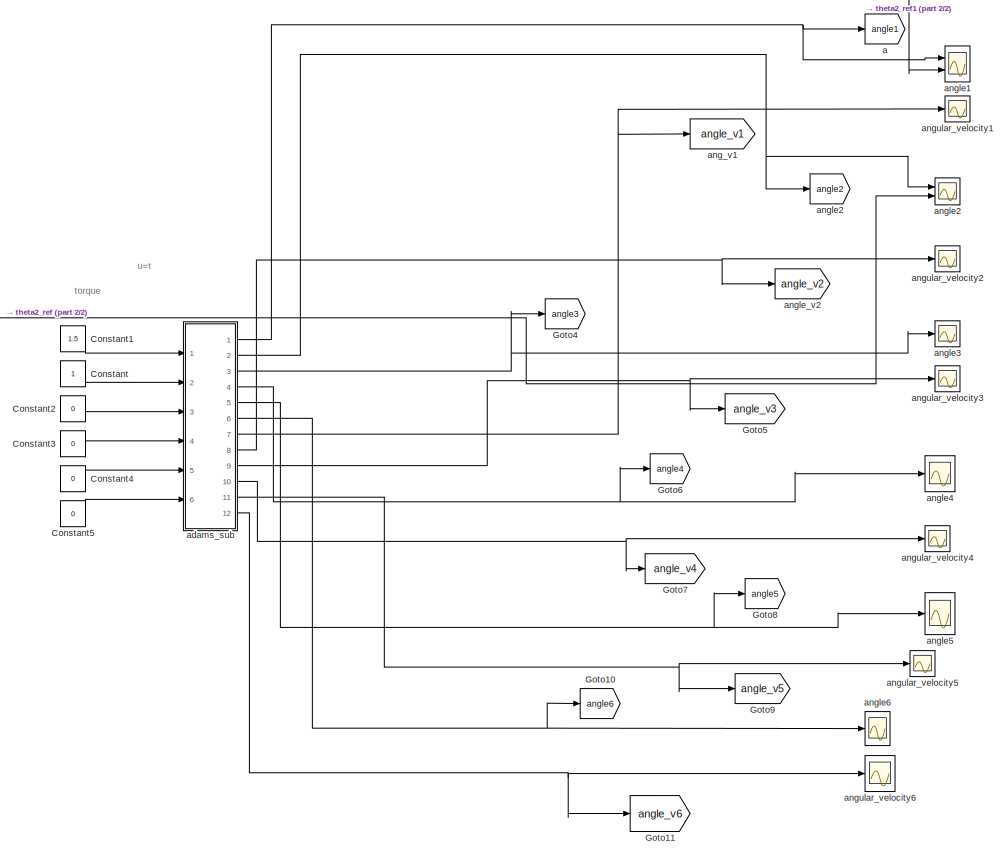
[diagram: root canvas - part 1/2, right side, full height]
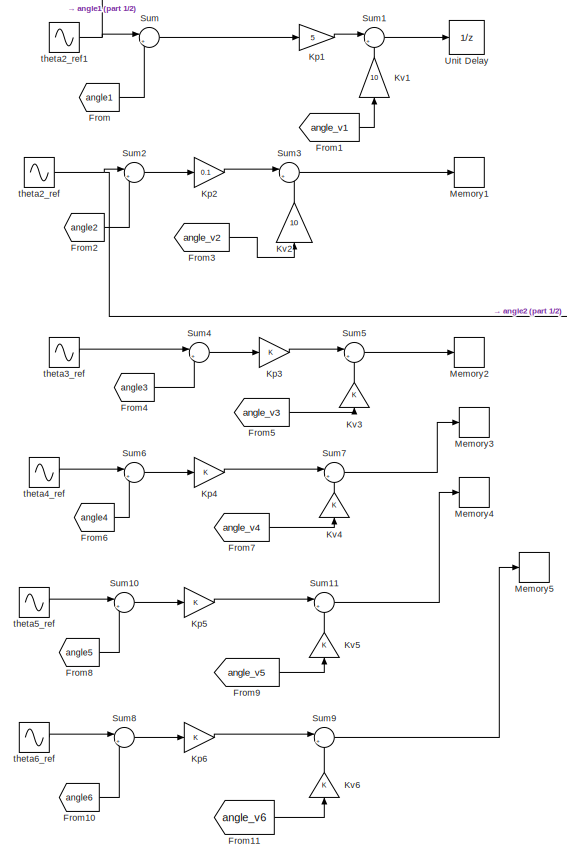
[diagram: root canvas - part 2/2, left side, full height]
MODEL slx_83c3d678d374
KIND model
CONFIG AbsTol = auto
CONFIG FixedStep = auto
CONFIG MaxStep = auto
CONFIG MinStep = auto
CONFIG RelTol = 1e-3
CONFIG SampleTimeConstraint = Unconstrained
CONFIG Solver = FixedStepAuto
CONFIG SolverMode = Auto
CONFIG SolverName = FixedStepAuto
CONFIG StartTime = 0.0
CONFIG StopTime = 4
BLOCK [Constant] Constant
BLOCK [Constant] Constant1
  Value = 1.5
BLOCK [Constant] Constant2
  Value = 0
BLOCK [Constant] Constant3
  Value = 0
BLOCK [Constant] Constant4
  Value = 0
BLOCK [Constant] Constant5
  Value = 0
BLOCK [From] From
  GotoTag = angle1
BLOCK [From] From1
  GotoTag = angle_v1
BLOCK [From] From10
  GotoTag = angle6
BLOCK [From] From11
  GotoTag = angle_v6
BLOCK [From] From2
  GotoTag = angle2
BLOCK [From] From3
  GotoTag = angle_v2
BLOCK [From] From4
  GotoTag = angle3
BLOCK [From] From5
  GotoTag = angle_v3
BLOCK [From] From6
  GotoTag = angle4
BLOCK [From] From7
  GotoTag = angle_v4
BLOCK [From] From8
  GotoTag = angle5
BLOCK [From] From9
  GotoTag = angle_v5
BLOCK [Goto] Goto10
  GotoTag = angle6
BLOCK [Goto] Goto11
  GotoTag = angle_v6
BLOCK [Goto] Goto4
  GotoTag = angle3
BLOCK [Goto] Goto5
  GotoTag = angle_v3
BLOCK [Goto] Goto6
  GotoTag = angle4
BLOCK [Goto] Goto7
  GotoTag = angle_v4
BLOCK [Goto] Goto8
  GotoTag = angle5
BLOCK [Goto] Goto9
  GotoTag = angle_v5
BLOCK [Gain] Kp1
  Gain = 5
  OutDataTypeStr = Inherit: Inherit via internal rule
  ParamDataTypeStr = Inherit: Inherit via internal rule
  SaturateOnIntegerOverflow = off
BLOCK [Gain] Kp2
  Gain = 0.1
  OutDataTypeStr = Inherit: Inherit via internal rule
  ParamDataTypeStr = Inherit: Inherit via internal rule
  SaturateOnIntegerOverflow = off
BLOCK [Gain] Kp3
  OutDataTypeStr = Inherit: Inherit via internal rule
  ParamDataTypeStr = Inherit: Inherit via internal rule
  SaturateOnIntegerOverflow = off
BLOCK [Gain] Kp4
  OutDataTypeStr = Inherit: Inherit via internal rule
  ParamDataTypeStr = Inherit: Inherit via internal rule
  SaturateOnIntegerOverflow = off
BLOCK [Gain] Kp5
  OutDataTypeStr = Inherit: Inherit via internal rule
  ParamDataTypeStr = Inherit: Inherit via internal rule
  SaturateOnIntegerOverflow = off
BLOCK [Gain] Kp6
  OutDataTypeStr = Inherit: Inherit via internal rule
  ParamDataTypeStr = Inherit: Inherit via internal rule
  SaturateOnIntegerOverflow = off
BLOCK [Gain] Kv1
  Gain = 10
  OutDataTypeStr = Inherit: Inherit via internal rule
  ParamDataTypeStr = Inherit: Inherit via internal rule
  SaturateOnIntegerOverflow = off
BLOCK [Gain] Kv2
  Gain = 10
  OutDataTypeStr = Inherit: Inherit via internal rule
  ParamDataTypeStr = Inherit: Inherit via internal rule
  SaturateOnIntegerOverflow = off
BLOCK [Gain] Kv3
  OutDataTypeStr = Inherit: Inherit via internal rule
  ParamDataTypeStr = Inherit: Inherit via internal rule
  SaturateOnIntegerOverflow = off
BLOCK [Gain] Kv4
  OutDataTypeStr = Inherit: Inherit via internal rule
  ParamDataTypeStr = Inherit: Inherit via internal rule
  SaturateOnIntegerOverflow = off
BLOCK [Gain] Kv5
  OutDataTypeStr = Inherit: Inherit via internal rule
  ParamDataTypeStr = Inherit: Inherit via internal rule
  SaturateOnIntegerOverflow = off
BLOCK [Gain] Kv6
  OutDataTypeStr = Inherit: Inherit via internal rule
  ParamDataTypeStr = Inherit: Inherit via internal rule
  SaturateOnIntegerOverflow = off
BLOCK [Memory] Memory1
BLOCK [Memory] Memory2
BLOCK [Memory] Memory3
BLOCK [Memory] Memory4
BLOCK [Memory] Memory5
BLOCK [Sum] Sum
  IconShape = round
  InputSameDT = off
  Inputs = |+-
  OutDataTypeStr = Inherit: Inherit via internal rule
  Ports = [2, 1]
  SaturateOnIntegerOverflow = off
BLOCK [Sum] Sum1
  IconShape = round
  InputSameDT = off
  Inputs = |+-
  OutDataTypeStr = Inherit: Inherit via internal rule
  Ports = [2, 1]
  SaturateOnIntegerOverflow = off
BLOCK [Sum] Sum10
  IconShape = round
  InputSameDT = off
  Inputs = |+-
  OutDataTypeStr = Inherit: Inherit via internal rule
  Ports = [2, 1]
  SaturateOnIntegerOverflow = off
BLOCK [Sum] Sum11
  IconShape = round
  InputSameDT = off
  Inputs = |+-
  OutDataTypeStr = Inherit: Inherit via internal rule
  Ports = [2, 1]
  SaturateOnIntegerOverflow = off
BLOCK [Sum] Sum2
  IconShape = round
  InputSameDT = off
  Inputs = |+-
  OutDataTypeStr = Inherit: Inherit via internal rule
  Ports = [2, 1]
  SaturateOnIntegerOverflow = off
BLOCK [Sum] Sum3
  IconShape = round
  InputSameDT = off
  Inputs = |+-
  OutDataTypeStr = Inherit: Inherit via internal rule
  Ports = [2, 1]
  SaturateOnIntegerOverflow = off
BLOCK [Sum] Sum4
  IconShape = round
  InputSameDT = off
  Inputs = |+-
  OutDataTypeStr = Inherit: Inherit via internal rule
  Ports = [2, 1]
  SaturateOnIntegerOverflow = off
BLOCK [Sum] Sum5
  IconShape = round
  InputSameDT = off
  Inputs = |+-
  OutDataTypeStr = Inherit: Inherit via internal rule
  Ports = [2, 1]
  SaturateOnIntegerOverflow = off
BLOCK [Sum] Sum6
  IconShape = round
  InputSameDT = off
  Inputs = |+-
  OutDataTypeStr = Inherit: Inherit via internal rule
  Ports = [2, 1]
  SaturateOnIntegerOverflow = off
BLOCK [Sum] Sum7
  IconShape = round
  InputSameDT = off
  Inputs = |+-
  OutDataTypeStr = Inherit: Inherit via internal rule
  Ports = [2, 1]
  SaturateOnIntegerOverflow = off
BLOCK [Sum] Sum8
  IconShape = round
  InputSameDT = off
  Inputs = |+-
  OutDataTypeStr = Inherit: Inherit via internal rule
  Ports = [2, 1]
  SaturateOnIntegerOverflow = off
BLOCK [Sum] Sum9
  IconShape = round
  InputSameDT = off
  Inputs = |+-
  OutDataTypeStr = Inherit: Inherit via internal rule
  Ports = [2, 1]
  SaturateOnIntegerOverflow = off
BLOCK [UnitDelay] Unit Delay
  InputProcessing = Elements as channels (sample based)
  SampleTime = -1
BLOCK [Goto] a
  GotoTag = angle1
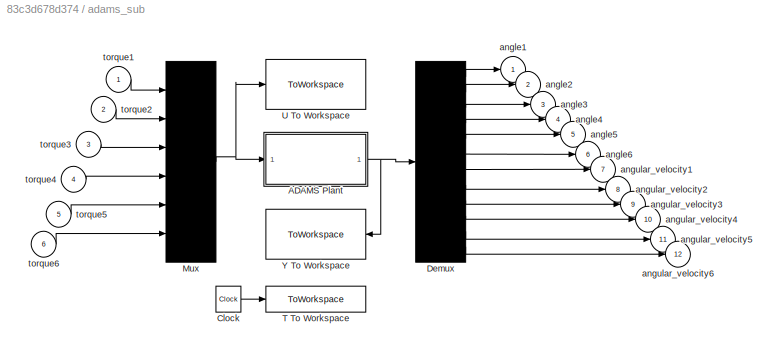
BLOCK [SubSystem] adams_sub
  Ports = [6, 12]
  RequestExecContextInheritance = off
  ShowPortLabels = none
  Variant = off
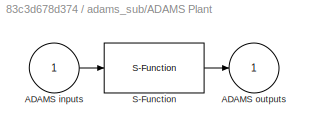
BLOCK [SubSystem] adams_sub/ADAMS Plant
  InitFcn = clear mex
  LoadFcn = %check based on dialog box setting for when setting by popup menu                                             \nif exist('ADAMS_solver_type')                                                                                 \n  if strcmp(ADAMS_solver_type,'C++')                                                                          \n    set_param(gcb,'exetyp','C++');                                 ...<+3488ch>
  OpenFcn = open_system(gcb,'mask')                                                                                                                          \nif not(exist('set_some_params_states'))                                                                                                          \n                                                                                                            ...<+625ch>
  Ports = [1, 1]
  RequestExecContextInheritance = off
  Variant = off
BLOCK [Inport] adams_sub/ADAMS Plant/ADAMS inputs
  IconDisplay = Port number
BLOCK [Outport] adams_sub/ADAMS Plant/ADAMS outputs
  IconDisplay = Port number
  InitialOutput = 0
BLOCK [S-Function] adams_sub/ADAMS Plant/S-Function
  EnableBusSupport = off
  FunctionName = adams_plant
  Parameters = exevie,exesol,stat,outfil,nampre,o_rate,nam_in,namout,dft,modsim,modani,dt_out,inicmd,exetyp,comtyp,ada_host, workdir,pin_interp_order,pout_extrap_order,pin_extrap_order,pout_interp_order,simulink_lead_cosim
  Ports = [1, 1]
  SFunctionDeploymentMode = off
  StopFcn = clear mex
BLOCK [Clock] adams_sub/Clock
BLOCK [Demux] adams_sub/Demux
  Outputs = 12
  Ports = [1, 12]
BLOCK [Mux] adams_sub/Mux
  Inputs = 6
  Ports = [6, 1]
BLOCK [ToWorkspace] adams_sub/T To Workspace
  MaxDataPoints = 100000
  Ports = [1]
  VariableName = ADAMS_tout
BLOCK [ToWorkspace] adams_sub/U To Workspace
  MaxDataPoints = 100000
  Ports = [1]
  VariableName = ADAMS_uout
BLOCK [ToWorkspace] adams_sub/Y To Workspace
  MaxDataPoints = 100000
  Ports = [1]
  VariableName = ADAMS_yout
BLOCK [Outport] adams_sub/angle1           
  IconDisplay = Port number
BLOCK [Outport] adams_sub/angle2           
  IconDisplay = Port number
  Port = 2
BLOCK [Outport] adams_sub/angle3           
  IconDisplay = Port number
  Port = 3
BLOCK [Outport] adams_sub/angle4           
  IconDisplay = Port number
  Port = 4
BLOCK [Outport] adams_sub/angle5           
  IconDisplay = Port number
  Port = 5
BLOCK [Outport] adams_sub/angle6           
  IconDisplay = Port number
  Port = 6
BLOCK [Outport] adams_sub/angular_velocity1
  IconDisplay = Port number
  Port = 7
BLOCK [Outport] adams_sub/angular_velocity2
  IconDisplay = Port number
  Port = 8
BLOCK [Outport] adams_sub/angular_velocity3
  IconDisplay = Port number
  Port = 9
BLOCK [Outport] adams_sub/angular_velocity4
  IconDisplay = Port number
  Port = 10
BLOCK [Outport] adams_sub/angular_velocity5
  IconDisplay = Port number
  Port = 11
BLOCK [Outport] adams_sub/angular_velocity6
  IconDisplay = Port number
  Port = 12
BLOCK [Inport] adams_sub/torque1
  IconDisplay = Port number
BLOCK [Inport] adams_sub/torque2
  IconDisplay = Port number
  Port = 2
BLOCK [Inport] adams_sub/torque3
  IconDisplay = Port number
  Port = 3
BLOCK [Inport] adams_sub/torque4
  IconDisplay = Port number
  Port = 4
BLOCK [Inport] adams_sub/torque5
  IconDisplay = Port number
  Port = 5
BLOCK [Inport] adams_sub/torque6
  IconDisplay = Port number
  Port = 6
BLOCK [Goto] ang_v1
  GotoTag = angle_v1
BLOCK [Scope] angle1           
  NumInputPorts = 2
  Ports = [2]
  ScopeSpecificationString = Simulink.scopes.TimeScopeBlockCfg('CurrentConfiguration', extmgr.ConfigurationSet(extmgr.Configuration('Core','General UI',true),extmgr.Configuration('Core','Source UI',true),extmgr.Configuration('Sources','WiredSimulink',true,'DataLoggingVariableName','ScopeData1','DataLoggingLimitDataPoints',true,'DataLoggingSaveFormat','Array','DataLoggingDecimation','1','DataLoggingDecimateData',true),extmgr.C...<+1735ch>
BLOCK [Goto] angle2
  GotoTag = angle2
BLOCK [Scope] angle2           
  NumInputPorts = 2
  Ports = [2]
  ScopeSpecificationString = Simulink.scopes.TimeScopeBlockCfg('CurrentConfiguration', extmgr.ConfigurationSet(extmgr.Configuration('Core','General UI',true),extmgr.Configuration('Core','Source UI',true),extmgr.Configuration('Sources','WiredSimulink',true,'DataLoggingVariableName','ScopeData2','DataLoggingLimitDataPoints',true,'DataLoggingSaveFormat','Array','DataLoggingDecimation','1','DataLoggingDecimateData',true),extmgr.C...<+1711ch>
BLOCK [Scope] angle3           
  Ports = [1]
  ScopeSpecificationString = Simulink.scopes.TimeScopeBlockCfg('CurrentConfiguration', extmgr.ConfigurationSet(extmgr.Configuration('Core','General UI',true),extmgr.Configuration('Core','Source UI',true),extmgr.Configuration('Sources','WiredSimulink',true,'DataLoggingVariableName','ScopeData3','DataLoggingLimitDataPoints',true,'DataLoggingSaveFormat','Array','DataLoggingDecimation','1','DataLoggingDecimateData',true),extmgr.C...<+1698ch>
BLOCK [Scope] angle4           
  Ports = [1]
  ScopeSpecificationString = Simulink.scopes.TimeScopeBlockCfg('CurrentConfiguration', extmgr.ConfigurationSet(extmgr.Configuration('Core','General UI',true),extmgr.Configuration('Core','Source UI',true),extmgr.Configuration('Sources','WiredSimulink',true,'DataLoggingVariableName','ScopeData4','DataLoggingLimitDataPoints',true,'DataLoggingSaveFormat','Array','DataLoggingDecimation','1','DataLoggingDecimateData',true),extmgr.C...<+1698ch>
BLOCK [Scope] angle5           
  Ports = [1]
  ScopeSpecificationString = Simulink.scopes.TimeScopeBlockCfg('CurrentConfiguration', extmgr.ConfigurationSet(extmgr.Configuration('Core','General UI',true),extmgr.Configuration('Core','Source UI',true),extmgr.Configuration('Sources','WiredSimulink',true,'DataLoggingVariableName','ScopeData5','DataLoggingLimitDataPoints',true,'DataLoggingSaveFormat','Array','DataLoggingDecimation','1','DataLoggingDecimateData',true),extmgr.C...<+1699ch>
BLOCK [Scope] angle6           
  Ports = [1]
  ScopeSpecificationString = Simulink.scopes.TimeScopeBlockCfg('CurrentConfiguration', extmgr.ConfigurationSet(extmgr.Configuration('Core','General UI',true),extmgr.Configuration('Core','Source UI',true),extmgr.Configuration('Sources','WiredSimulink',true,'DataLoggingVariableName','ScopeData6','DataLoggingLimitDataPoints',true,'DataLoggingSaveFormat','Array','DataLoggingDecimation','1','DataLoggingDecimateData',true),extmgr.C...<+1696ch>
BLOCK [Goto] angle_v2
  GotoTag = angle_v2
BLOCK [Scope] angular_velocity1
  Ports = [1]
  ScopeSpecificationString = Simulink.scopes.TimeScopeBlockCfg('CurrentConfiguration', extmgr.ConfigurationSet(extmgr.Configuration('Core','General UI',true),extmgr.Configuration('Core','Source UI',true),extmgr.Configuration('Sources','WiredSimulink',true,'DataLoggingVariableName','ScopeData7','DataLoggingLimitDataPoints',true,'DataLoggingSaveFormat','Array','DataLoggingDecimation','1','DataLoggingDecimateData',true),extmgr.C...<+1677ch>
BLOCK [Scope] angular_velocity2
  Ports = [1]
  ScopeSpecificationString = Simulink.scopes.TimeScopeBlockCfg('CurrentConfiguration', extmgr.ConfigurationSet(extmgr.Configuration('Core','General UI',true),extmgr.Configuration('Core','Source UI',true),extmgr.Configuration('Sources','WiredSimulink',true,'DataLoggingVariableName','ScopeData8','DataLoggingLimitDataPoints',true,'DataLoggingSaveFormat','Array','DataLoggingDecimation','1','DataLoggingDecimateData',true),extmgr.C...<+1673ch>
BLOCK [Scope] angular_velocity3
  Ports = [1]
  ScopeSpecificationString = Simulink.scopes.TimeScopeBlockCfg('CurrentConfiguration', extmgr.ConfigurationSet(extmgr.Configuration('Core','General UI',true),extmgr.Configuration('Core','Source UI',true),extmgr.Configuration('Sources','WiredSimulink',true,'DataLoggingVariableName','ScopeData9','DataLoggingLimitDataPoints',true,'DataLoggingSaveFormat','Array','DataLoggingDecimation','1','DataLoggingDecimateData',true),extmgr.C...<+1673ch>
BLOCK [Scope] angular_velocity4
  Ports = [1]
  ScopeSpecificationString = Simulink.scopes.TimeScopeBlockCfg('CurrentConfiguration', extmgr.ConfigurationSet(extmgr.Configuration('Core','General UI',true),extmgr.Configuration('Core','Source UI',true),extmgr.Configuration('Sources','WiredSimulink',true,'DataLoggingVariableName','ScopeData10','DataLoggingLimitDataPoints',true,'DataLoggingSaveFormat','Array','DataLoggingDecimation','1','DataLoggingDecimateData',true),extmgr....<+1675ch>
BLOCK [Scope] angular_velocity5
  Ports = [1]
  ScopeSpecificationString = Simulink.scopes.TimeScopeBlockCfg('CurrentConfiguration', extmgr.ConfigurationSet(extmgr.Configuration('Core','General UI',true),extmgr.Configuration('Core','Source UI',true),extmgr.Configuration('Sources','WiredSimulink',true,'DataLoggingVariableName','ScopeData11','DataLoggingLimitDataPoints',true,'DataLoggingSaveFormat','Array','DataLoggingDecimation','1','DataLoggingDecimateData',true),extmgr....<+1680ch>
BLOCK [Scope] angular_velocity6
  Ports = [1]
  ScopeSpecificationString = Simulink.scopes.TimeScopeBlockCfg('CurrentConfiguration', extmgr.ConfigurationSet(extmgr.Configuration('Core','General UI',true),extmgr.Configuration('Core','Source UI',true),extmgr.Configuration('Sources','WiredSimulink',true,'DataLoggingLimitDataPoints',true,'DataLoggingSaveFormat','Array','DataLoggingDecimation','1','DataLoggingDecimateData',true),extmgr.Configuration('Visuals','Time Domain',tr...<+1651ch>
BLOCK [Sin] theta2_ref
  Amplitude = 0
  Ports = [0, 1]
  SampleTime = 0
BLOCK [Sin] theta2_ref1
  Amplitude = 0.1
  Ports = [0, 1]
  SampleTime = 0
BLOCK [Sin] theta3_ref
  Amplitude = 0
  Ports = [0, 1]
  SampleTime = 0
BLOCK [Sin] theta4_ref
  Amplitude = 0
  Ports = [0, 1]
  SampleTime = 0
BLOCK [Sin] theta5_ref
  Amplitude = 0
  Ports = [0, 1]
  SampleTime = 0
BLOCK [Sin] theta6_ref
  Amplitude = 0
  Ports = [0, 1]
  SampleTime = 0
ANNOTATION (root): torque
ANNOTATION (root): u=τ
LINE Constant1:1 -> adams_sub:1
LINE Constant2:1 -> adams_sub:3
LINE Constant3:1 -> adams_sub:4
LINE Constant4:1 -> adams_sub:5
LINE Constant5:1 -> adams_sub:6
LINE Constant:1 -> adams_sub:2
LINE From10:1 -> Sum8:2
LINE From11:1 -> Kv6:1
LINE From1:1 -> Kv1:1
LINE From2:1 -> Sum2:2
LINE From3:1 -> Kv2:1
LINE From4:1 -> Sum4:2
LINE From5:1 -> Kv3:1
LINE From6:1 -> Sum6:2
LINE From7:1 -> Kv4:1
LINE From8:1 -> Sum10:2
LINE From9:1 -> Kv5:1
LINE From:1 -> Sum:2
LINE Kp1:1 -> Sum1:1
LINE Kp2:1 -> Sum3:1
LINE Kp3:1 -> Sum5:1
LINE Kp4:1 -> Sum7:1
LINE Kp5:1 -> Sum11:1
LINE Kp6:1 -> Sum9:1
LINE Kv1:1 -> Sum1:2
LINE Kv2:1 -> Sum3:2
LINE Kv3:1 -> Sum5:2
LINE Kv4:1 -> Sum7:2
LINE Kv5:1 -> Sum11:2
LINE Kv6:1 -> Sum9:2
LINE Sum10:1 -> Kp5:1
LINE Sum11:1 -> Memory4:1
LINE Sum1:1 -> Unit Delay:1
LINE Sum2:1 -> Kp2:1
LINE Sum3:1 -> Memory1:1
LINE Sum4:1 -> Kp3:1
LINE Sum5:1 -> Memory2:1
LINE Sum6:1 -> Kp4:1
LINE Sum7:1 -> Memory3:1
LINE Sum8:1 -> Kp6:1
LINE Sum9:1 -> Memory5:1
LINE Sum:1 -> Kp1:1
LINE adams_sub/ADAMS Plant/ADAMS inputs:1 -> adams_sub/ADAMS Plant/S-Function:1
LINE adams_sub/ADAMS Plant/S-Function:1 -> adams_sub/ADAMS Plant/ADAMS outputs:1
NET adams_sub/ADAMS Plant:1 -> adams_sub/Demux:1, adams_sub/Y To Workspace:1
LINE adams_sub/Clock:1 -> adams_sub/T To Workspace:1
LINE adams_sub/Demux:1 -> adams_sub/angle1           :1
LINE adams_sub/Demux:10 -> adams_sub/angular_velocity4:1
LINE adams_sub/Demux:11 -> adams_sub/angular_velocity5:1
LINE adams_sub/Demux:12 -> adams_sub/angular_velocity6:1
LINE adams_sub/Demux:2 -> adams_sub/angle2           :1
LINE adams_sub/Demux:3 -> adams_sub/angle3           :1
LINE adams_sub/Demux:4 -> adams_sub/angle4           :1
LINE adams_sub/Demux:5 -> adams_sub/angle5           :1
LINE adams_sub/Demux:6 -> adams_sub/angle6           :1
LINE adams_sub/Demux:7 -> adams_sub/angular_velocity1:1
LINE adams_sub/Demux:8 -> adams_sub/angular_velocity2:1
LINE adams_sub/Demux:9 -> adams_sub/angular_velocity3:1
NET adams_sub/Mux:1 -> adams_sub/ADAMS Plant:1, adams_sub/U To Workspace:1
LINE adams_sub/torque1:1 -> adams_sub/Mux:1
LINE adams_sub/torque2:1 -> adams_sub/Mux:2
LINE adams_sub/torque3:1 -> adams_sub/Mux:3
LINE adams_sub/torque4:1 -> adams_sub/Mux:4
LINE adams_sub/torque5:1 -> adams_sub/Mux:5
LINE adams_sub/torque6:1 -> adams_sub/Mux:6
NET adams_sub:1 -> a:1, angle1           :1
NET adams_sub:10 -> Goto7:1, angular_velocity4:1
NET adams_sub:11 -> Goto9:1, angular_velocity5:1
NET adams_sub:12 -> Goto11:1, angular_velocity6:1
NET adams_sub:2 -> angle2           :1, angle2:1
NET adams_sub:3 -> Goto4:1, angle3           :1
NET adams_sub:4 -> Goto6:1, angle4           :1
NET adams_sub:5 -> Goto8:1, angle5           :1
NET adams_sub:6 -> Goto10:1, angle6           :1
NET adams_sub:7 -> ang_v1:1, angular_velocity1:1
NET adams_sub:8 -> angle_v2:1, angular_velocity2:1
NET adams_sub:9 -> Goto5:1, angular_velocity3:1
NET theta2_ref1:1 -> Sum:1, angle1           :2
NET theta2_ref:1 -> Sum2:1, angle2           :2
LINE theta3_ref:1 -> Sum4:1
LINE theta4_ref:1 -> Sum6:1
LINE theta5_ref:1 -> Sum10:1
LINE theta6_ref:1 -> Sum8:1
note: NET lines group one-source signal fan-out (src -> all destinations, sorted); 1:1 wires keep LINE
